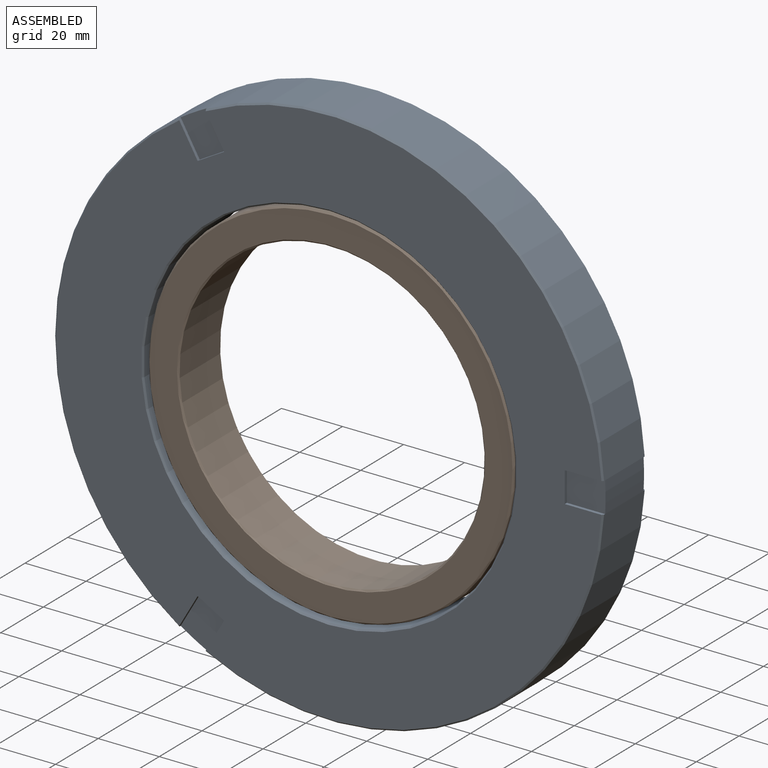
[diagram: assembled view]
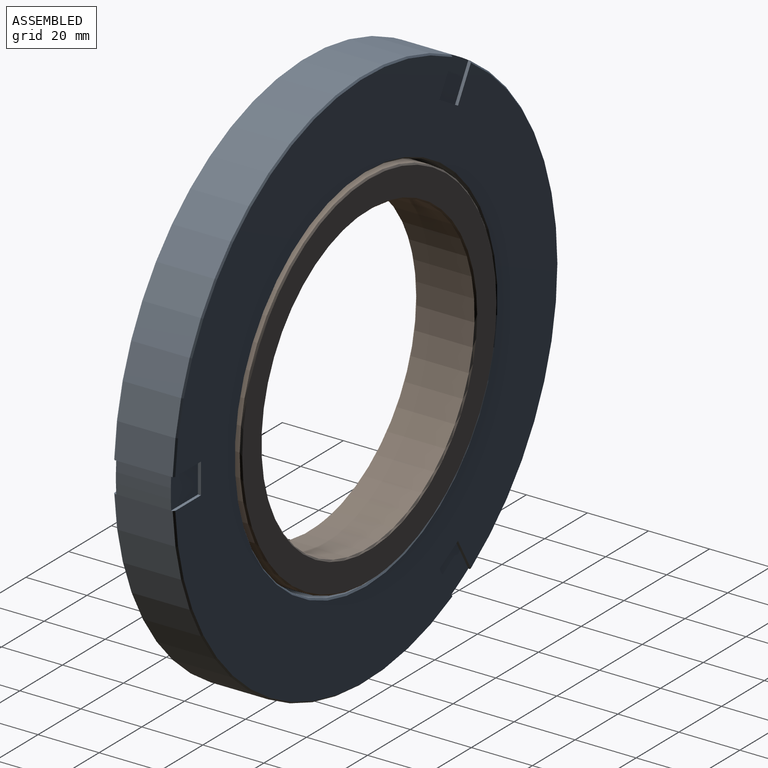
[diagram: assembled view, second angle]
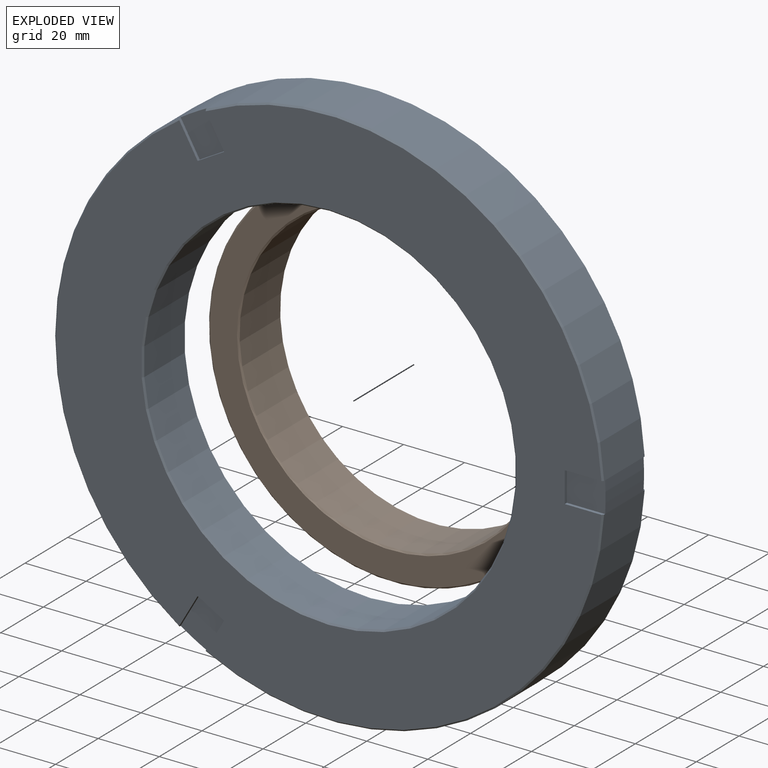
[diagram: exploded view]
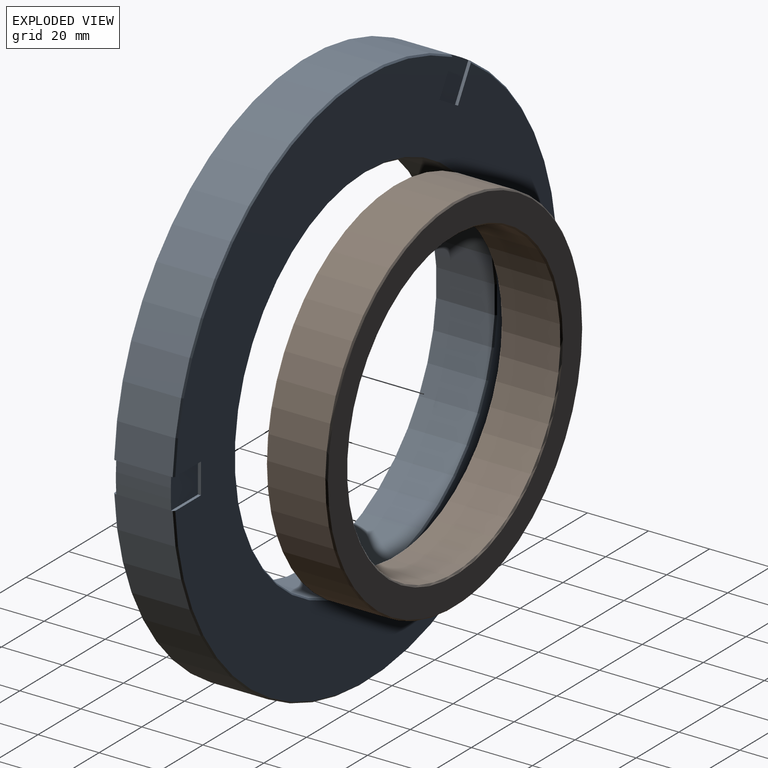
[diagram: exploded view, second angle]
ASSEMBLY  parts=2 mates=2
PART A: 36 faces, bbox 180x20x180 mm
  f0: plane 179x178.86mm, normal (0,1,0), area 12918.8mm2, adj f1,f2,f9,f11,f25,f26,f27,f29
  f1: cone r=90mm half-angle=45deg, axis (0,-1,0), area 125.8mm2, adj f0,f3,f25,f34
  f2: cone r=90mm half-angle=45deg, axis (0,-1,0), area 125.8mm2, adj f0,f3,f30,f33
  f3: cylinder r=90mm len=180mm, axis (0,1,0), area 10714.2mm2, adj f1,f2,f5,f6,f7,f11,f12,f13
  f4: plane 179x178.86mm, normal (0,-1,0), area 12918.8mm2, adj f5,f6,f7,f10,f13,f14,f15,f17
  f5: cone r=89.5mm half-angle=45deg, axis (0,1,0), area 125.8mm2, adj f3,f4,f18,f21
  f6: cone r=89.5mm half-angle=45deg, axis (0,1,0), area 125.8mm2, adj f3,f4,f14,f17
  f7: cone r=89.5mm half-angle=45deg, axis (0,1,0), area 125.8mm2, adj f3,f4,f13,f22
  f8: cylinder r=61mm len=122mm, axis (0,1,0), area 7282.2mm2, adj f9,f10
  f9: cone r=61.5mm half-angle=45deg, axis (0,1,0), area 272.1mm2, adj f0,f8
  f10: cone r=61mm half-angle=45deg, axis (0,-1,0), area 272.1mm2, adj f4,f8
  f11: cone r=90mm half-angle=45deg, axis (0,-1,0), area 125.8mm2, adj f0,f3,f26,f29
  f12: plane 15.86x14.93mm, normal (0,-1,0), area 126.3mm2, adj f3,f13,f14,f15
  f13: plane 10.86x6.27mm, normal (-0.87,0,0.5), area 12.4mm2, adj f3,f4,f7,f12,f15
  f14: plane 10.86x6.27mm, normal (0.87,0,-0.5), area 12.4mm2, adj f3,f4,f6,f12,f15
  f15: plane 8.66x5mm, normal (-0.5,0,-0.87), area 10mm2, adj f4,f12,f13,f14
  f16: plane 15.86x14.93mm, normal (0,-1,0), area 126.3mm2, adj f3,f17,f18,f19
  f17: plane 10.86x6.27mm, normal (0.87,0,0.5), area 12.4mm2, adj f3,f4,f6,f16,f19
  f18: plane 10.86x6.27mm, normal (-0.87,0,-0.5), area 12.4mm2, adj f3,f4,f5,f16,f19
  f19: plane 8.66x5mm, normal (-0.5,0,0.87), area 10mm2, adj f4,f16,f17,f18
  f20: plane 12.67x10mm, normal (0,-1,0), area 126.3mm2, adj f3,f21,f22,f23
  f21: plane 12.54x1mm, normal (0,0,-1), area 12.4mm2, adj f3,f4,f5,f20,f23
  f22: plane 12.54x1mm, normal (0,0,1), area 12.4mm2, adj f3,f4,f7,f20,f23
  f23: plane 10x1mm, normal (1,0,0), area 10mm2, adj f4,f20,f21,f22
  f24: plane 15.86x14.93mm, normal (0,1,0), area 126.3mm2, adj f3,f25,f26,f27
  f25: plane 10.86x6.27mm, normal (-0.87,0,0.5), area 12.4mm2, adj f0,f1,f3,f24,f27
  f26: plane 10.86x6.27mm, normal (0.87,0,-0.5), area 12.4mm2, adj f0,f3,f11,f24,f27
  f27: plane 8.66x5mm, normal (-0.5,0,-0.87), area 10mm2, adj f0,f24,f25,f26
  f28: plane 15.86x14.93mm, normal (0,1,0), area 126.3mm2, adj f3,f29,f30,f31
  f29: plane 10.86x6.27mm, normal (0.87,0,0.5), area 12.4mm2, adj f0,f3,f11,f28,f31
  f30: plane 10.86x6.27mm, normal (-0.87,0,-0.5), area 12.4mm2, adj f0,f2,f3,f28,f31
  f31: plane 8.66x5mm, normal (-0.5,0,0.87), area 10mm2, adj f0,f28,f29,f30
  f32: plane 12.67x10mm, normal (0,1,0), area 126.3mm2, adj f3,f33,f34,f35
  f33: plane 12.54x1mm, normal (0,0,-1), area 12.4mm2, adj f0,f2,f3,f32,f35
  f34: plane 12.54x1mm, normal (0,0,1), area 12.4mm2, adj f0,f1,f3,f32,f35
  f35: plane 10x1mm, normal (1,0,0), area 10mm2, adj f0,f32,f33,f34
PART B: 8 faces, bbox 120x20x120 mm
  f0: cylinder r=50mm len=100mm, axis (0,1,0), area 5969mm2, adj f5,f6
  f1: cylinder r=60mm len=120mm, axis (0,1,0), area 7162.8mm2, adj f4,f7
  f2: plane 119x119mm, normal (0,-1,0), area 3110.2mm2, adj f6,f7
  f3: plane 119x119mm, normal (0,1,0), area 3110.2mm2, adj f4,f5
  f4: cone r=60mm half-angle=45deg, axis (0,-1,0), area 265.5mm2, adj f1,f3
  f5: cone r=50.5mm half-angle=45deg, axis (0,1,0), area 223.3mm2, adj f0,f3
  f6: cone r=50mm half-angle=45deg, axis (0,-1,0), area 223.3mm2, adj f0,f2
  f7: cone r=59.5mm half-angle=45deg, axis (0,1,0), area 265.5mm2, adj f1,f2
PLACE A t=(-110.94,-12.13,15.82)mm fixed
PLACE B rot(axis=(0,-1,0),149.9deg) t=(-110.94,-11.09,15.82)mm
MATE cylindrical B.f1 <-> A.f8  axis (0,1,0) through (-110.94,-11.09,15.82)mm
MATE cylindrical B.f1 <-> A.f8  axis (0,1,0) through (-110.94,-11.09,15.82)mm
